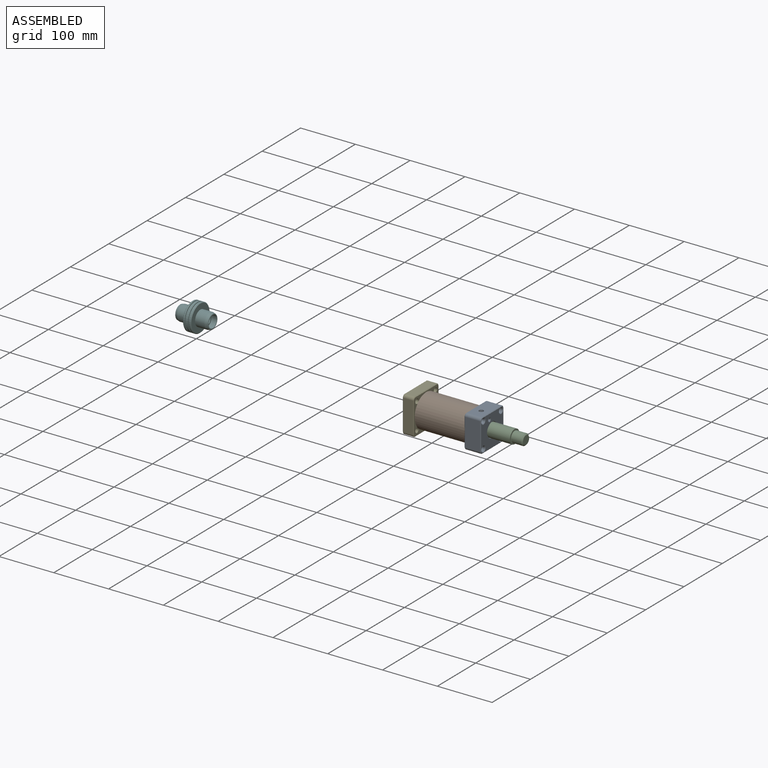
[diagram: assembled view]
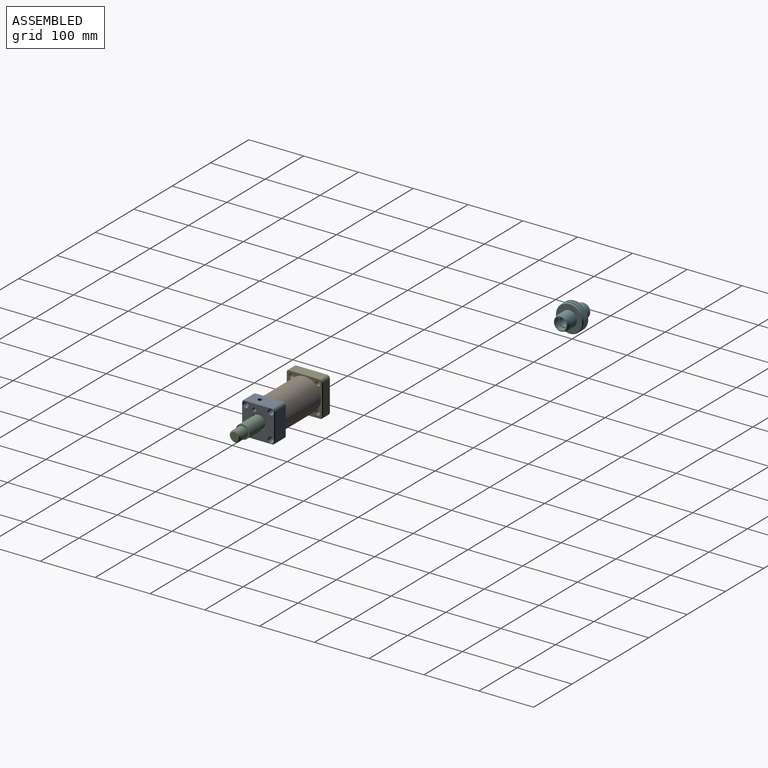
[diagram: assembled view, second angle]
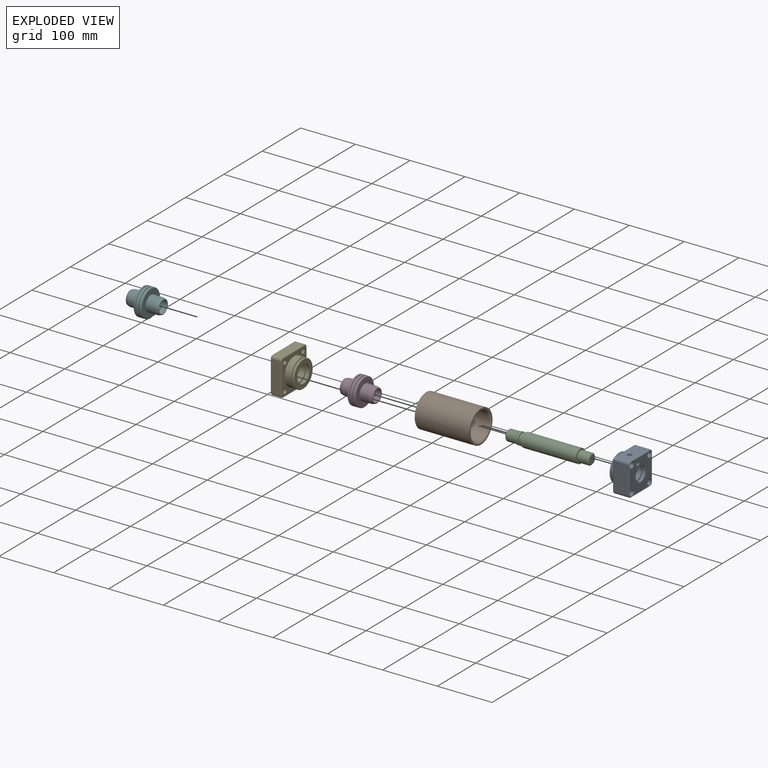
[diagram: exploded view]
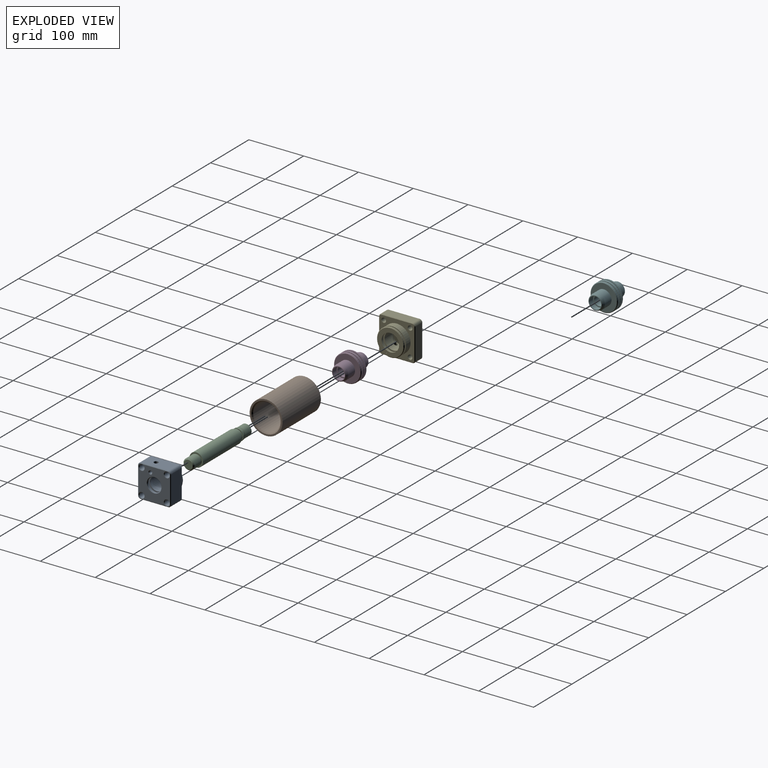
[diagram: exploded view, second angle]
ASSEMBLY  parts=6 mates=3
PART A: 63 faces, bbox 40x60x60 mm
  f0: cylinder r=12.5mm len=25mm, axis (1,0,0), area 235.6mm2, adj f8,f59
  f1: cylinder r=16mm len=32mm, axis (1,0,0), area 2457.2mm2, adj f4,f8,f30,f31
  f2: cylinder r=1mm len=21mm, axis (-1,0,0), area 131.9mm2, adj f27,f31
  f3: cylinder r=2.5mm len=10.88mm, axis (-1,0,0), area 163.8mm2, adj f31,f45
  f4: plane 36x36mm, normal (1,0,0), area 213.6mm2, adj f1,f5
  f5: cylinder r=18mm len=36mm, axis (1,0,0), area 226.2mm2, adj f4,f6
  f6: plane 36x36mm, normal (-1,0,0), area 213.6mm2, adj f5,f7
  f7: cylinder r=16mm len=32mm, axis (1,0,0), area 301.6mm2, adj f6,f27
  f8: plane 32x32mm, normal (1,0,0), area 313.4mm2, adj f0,f1
  f9: cylinder r=24.95mm len=49.9mm, axis (-1,0,0), area 627.1mm2, adj f24,f44
  f10: plane 58x58mm, normal (-1,0,0), area 2359.1mm2, adj f45,f46,f47,f48,f49,f50,f51,f52
  f11: plane 58x58mm, normal (1,0,0), area 854.6mm2, adj f32,f33,f34,f35,f36,f37,f38,f39
  f12: plane 50x28mm, normal (0,0,-1), area 1400mm2, adj f16,f19,f39,f53
  f13: plane 50x28mm, normal (0,1,0), area 1400mm2, adj f16,f17,f36,f50
  f14: plane 50x28mm, normal (0,0,1), area 1349.7mm2, adj f17,f18,f31,f40,f54
  f15: plane 50x28mm, normal (0,-1,0), area 1400mm2, adj f18,f19,f43,f57
  f16: cylinder r=5mm len=28mm, axis (-1,0,0), area 219.9mm2, adj f12,f13,f37,f51
  f17: cylinder r=5mm len=28mm, axis (1,0,0), area 219.9mm2, adj f13,f14,f38,f52
  f18: cylinder r=5mm len=28mm, axis (-1,0,0), area 219.9mm2, adj f14,f15,f42,f56
  f19: cylinder r=5mm len=28mm, axis (1,0,0), area 219.9mm2, adj f12,f15,f41,f55
  f20: cylinder r=4.5mm len=28mm, axis (1,0,0), area 791.7mm2, adj f35,f49
  f21: cylinder r=4.5mm len=28mm, axis (1,0,0), area 791.7mm2, adj f34,f48
  f22: cylinder r=4.5mm len=28mm, axis (1,0,0), area 791.7mm2, adj f32,f46
  f23: cylinder r=4.5mm len=28mm, axis (1,0,0), area 791.7mm2, adj f33,f47
  f24: plane 49.9x49.9mm, normal (1,0,0), area 146.1mm2, adj f9,f26
  f25: plane 49.9x49.9mm, normal (-1,0,0), area 146.1mm2, adj f26,f29
  f26: cylinder r=24mm len=48mm, axis (1,0,0), area 301.6mm2, adj f24,f25
  f27: plane 47.9x47.9mm, normal (1,0,0), area 994.6mm2, adj f2,f7,f28
  f28: cone r=23.95mm half-angle=45deg, axis (-1,0,0), area 217.3mm2, adj f27,f29
  f29: cylinder r=24.95mm len=49.9mm, axis (-1,0,0), area 313.5mm2, adj f25,f28
  f30: cone r=0mm half-angle=59deg, axis (0,0,1), area 0.7mm2, adj f1,f31
  f31: cylinder r=4mm len=18mm, axis (0,0,1), area 376.5mm2, adj f1,f2,f3,f14,f30
  f32: cone r=4.5mm half-angle=45deg, axis (1,0,0), area 44.4mm2, adj f11,f22
  f33: cone r=5.5mm half-angle=45deg, axis (1,0,0), area 44.4mm2, adj f11,f23
  f34: cone r=5.5mm half-angle=45deg, axis (1,0,0), area 44.4mm2, adj f11,f21
  f35: cone r=4.5mm half-angle=45deg, axis (1,0,0), area 44.4mm2, adj f11,f20
  f36: plane 50x1mm, normal (0.71,0.71,0), area 70.7mm2, adj f11,f13,f37,f38
  f37: cone r=4mm half-angle=45deg, axis (-1,0,0), area 10mm2, adj f11,f16,f36,f39
  f38: cone r=4mm half-angle=45deg, axis (-1,0,0), area 10mm2, adj f11,f17,f36,f40
  f39: plane 50x1mm, normal (0.71,0,-0.71), area 70.7mm2, adj f11,f12,f37,f41
  f40: plane 50x1mm, normal (0.71,0,0.71), area 70.7mm2, adj f11,f14,f38,f42
  f41: cone r=4mm half-angle=45deg, axis (-1,0,0), area 10mm2, adj f11,f19,f39,f43
  f42: cone r=4mm half-angle=45deg, axis (-1,0,0), area 10mm2, adj f11,f18,f40,f43
  f43: plane 50x1mm, normal (0.71,-0.71,0), area 70.7mm2, adj f11,f15,f41,f42
  f44: cone r=24.95mm half-angle=45deg, axis (-1,0,0), area 226.1mm2, adj f9,f11
  f45: cone r=2.5mm half-angle=45deg, axis (-1,0,0), area 26.7mm2, adj f3,f10
  f46: cone r=5.5mm half-angle=45deg, axis (-1,0,0), area 44.4mm2, adj f10,f22
  f47: cone r=4.5mm half-angle=45deg, axis (-1,0,0), area 44.4mm2, adj f10,f23
  f48: cone r=4.5mm half-angle=45deg, axis (-1,0,0), area 44.4mm2, adj f10,f21
  f49: cone r=5.5mm half-angle=45deg, axis (-1,0,0), area 44.4mm2, adj f10,f20
  f50: plane 50x1mm, normal (-0.71,0.71,0), area 70.7mm2, adj f10,f13,f51,f52
  f51: cone r=4mm half-angle=45deg, axis (1,0,0), area 10mm2, adj f10,f16,f50,f53
  f52: cone r=4mm half-angle=45deg, axis (1,0,0), area 10mm2, adj f10,f17,f50,f54
  f53: plane 50x1mm, normal (-0.71,0,-0.71), area 70.7mm2, adj f10,f12,f51,f55
  f54: plane 50x1mm, normal (-0.71,0,0.71), area 70.7mm2, adj f10,f14,f52,f56
  f55: cone r=4mm half-angle=45deg, axis (1,0,0), area 10mm2, adj f10,f19,f53,f57
  f56: cone r=4mm half-angle=45deg, axis (1,0,0), area 10mm2, adj f10,f18,f54,f57
  f57: plane 50x1mm, normal (-0.71,-0.71,0), area 70.7mm2, adj f10,f15,f55,f56
  f58: cylinder r=12.5mm len=25mm, axis (1,0,0), area 78.5mm2, adj f60,f62
  f59: plane 30x30mm, normal (-1,0,0), area 216mm2, adj f0,f61
  f60: plane 30x30mm, normal (1,0,0), area 216mm2, adj f58,f61
  f61: cylinder r=15mm len=30mm, axis (-1,0,0), area 471.2mm2, adj f59,f60
  f62: cone r=13.5mm half-angle=45deg, axis (-1,0,0), area 115.5mm2, adj f10,f58
PART B: 6 faces, bbox 100x60x60 mm
  f0: cylinder r=25mm len=96mm, axis (-1,0,0), area 15079.6mm2, adj f4,f5
  f1: cylinder r=30mm len=100mm, axis (-1,0,0), area 18849.6mm2, adj f2,f3
  f2: plane 60x60mm, normal (1,0,0), area 537.2mm2, adj f1,f4
  f3: plane 60x60mm, normal (-1,0,0), area 537.2mm2, adj f1,f5
  f4: cone r=25mm half-angle=45deg, axis (1,0,0), area 462.1mm2, adj f0,f2
  f5: cone r=27mm half-angle=45deg, axis (-1,0,0), area 462.1mm2, adj f0,f3
PART C: 18 faces, bbox 152.7x25x25 mm
  f0: plane 25x25mm, normal (-1,0,0), area 42.2mm2, adj f13,f16
  f1: cylinder r=10.95mm len=21.9mm, axis (-1,0,0), area 275.2mm2, adj f2,f16
  f2: plane 21.9x21.9mm, normal (-1,0,0), area 119.4mm2, adj f1,f3
  f3: cylinder r=9.05mm len=18.1mm, axis (-1,0,0), area 113.7mm2, adj f2,f4
  f4: plane 21.9x21.9mm, normal (1,0,0), area 119.4mm2, adj f3,f5
  f5: cylinder r=10.95mm len=21.9mm, axis (-1,0,0), area 275.2mm2, adj f4,f17
  f6: torus R=10mm, axis (-1,0,0), area 174.7mm2, adj f7,f17
  f7: cylinder r=10mm len=20mm, axis (-1,0,0), area 1011.6mm2, adj f6,f14
  f8: plane 16x16mm, normal (-1,0,0), area 201.1mm2, adj f14
  f9: plane 16x16mm, normal (1,0,0), area 201.1mm2, adj f15
  f10: cylinder r=10mm len=20mm, axis (-1,0,0), area 1082.2mm2, adj f11,f15
  f11: torus R=10mm, axis (-1,0,0), area 141mm2, adj f10,f12
  f12: plane 25x25mm, normal (1,0,0), area 176.7mm2, adj f11,f13
  f13: cylinder r=12.5mm len=100mm, axis (-1,0,0), area 7854mm2, adj f0,f12
  f14: cone r=8mm half-angle=45deg, axis (1,0,0), area 159.9mm2, adj f7,f8
  f15: cone r=10mm half-angle=45deg, axis (-1,0,0), area 159.9mm2, adj f9,f10
  f16: cone r=10.95mm half-angle=45deg, axis (1,0,0), area 101.7mm2, adj f0,f1
  f17: cone r=9.98mm half-angle=44.3deg, axis (1,0,0), area 91.8mm2, adj f5,f6
PART D: 26 faces, bbox 60x49.9x49.9 mm
  f0: plane 23.51x23.51mm, normal (-1,0,0), area 179.7mm2, adj f1,f11
  f1: cylinder r=9mm len=50mm, axis (-1,0,0), area 2827.4mm2, adj f0,f24
  f2: cylinder r=24.95mm len=49.9mm, axis (-1,0,0), area 705.4mm2, adj f3,f14
  f3: plane 49.9x49.9mm, normal (-1,0,0), area 228.1mm2, adj f2,f4
  f4: cylinder r=23.45mm len=46.9mm, axis (-1,0,0), area 221mm2, adj f3,f5
  f5: plane 49.9x49.9mm, normal (1,0,0), area 228.1mm2, adj f4,f6
  f6: cylinder r=24.95mm len=49.9mm, axis (-1,0,0), area 431.1mm2, adj f5,f12
  f7: plane 47.9x47.9mm, normal (-1,0,0), area 1186.3mm2, adj f8,f12
  f8: cylinder r=14mm len=28mm, axis (-1,0,0), area 1474.8mm2, adj f7,f10
  f9: cone r=12.5mm half-angle=16.7deg, axis (1,0,0), area 311.6mm2, adj f10,f11
  f10: torus R=9mm, axis (1,0,0), area 127.5mm2, adj f8,f9
  f11: torus R=11.76mm, axis (-1,0,0), area 99mm2, adj f0,f9
  f12: cone r=23.95mm half-angle=45deg, axis (1,0,0), area 217.3mm2, adj f6,f7
  f13: plane 23.51x23.51mm, normal (1,0,0), area 54mm2, adj f22,f25
  f14: plane 49.9x49.9mm, normal (1,0,0), area 228.1mm2, adj f2,f15
  f15: cylinder r=23.45mm len=46.9mm, axis (1,0,0), area 221mm2, adj f14,f16
  f16: plane 49.9x49.9mm, normal (-1,0,0), area 228.1mm2, adj f15,f17
  f17: cylinder r=24.95mm len=49.9mm, axis (1,0,0), area 431.1mm2, adj f16,f23
  f18: plane 47.9x47.9mm, normal (1,0,0), area 1186.3mm2, adj f19,f23
  f19: cylinder r=14mm len=28mm, axis (1,0,0), area 1474.8mm2, adj f18,f21
  f20: cone r=12.5mm half-angle=16.7deg, axis (-1,0,0), area 311.6mm2, adj f21,f22
  f21: torus R=9mm, axis (-1,0,0), area 127.5mm2, adj f19,f20
  f22: torus R=11.76mm, axis (1,0,0), area 99mm2, adj f13,f20
  f23: cone r=23.95mm half-angle=45deg, axis (-1,0,0), area 217.3mm2, adj f17,f18
  f24: plane 22x22mm, normal (1,0,0), area 125.7mm2, adj f1,f25
  f25: cylinder r=11mm len=22mm, axis (-1,0,0), area 691.2mm2, adj f13,f24
PART E: 52 faces, bbox 37x66.1x66.1 mm
  f0: cylinder r=16mm len=32mm, axis (1,0,0), area 2179.4mm2, adj f6,f7,f48
  f1: cylinder r=3mm len=12mm, axis (-1,0,0), area 190.2mm2, adj f18,f48,f49
  f2: cylinder r=3mm len=6mm, axis (-1,0,0), area 10.3mm2, adj f47,f48,f49
  f3: cylinder r=3mm len=6mm, axis (-1,0,0), area 10.3mm2, adj f47,f48,f49
  f4: plane 37x37mm, normal (-1,0,0), area 271mm2, adj f5,f8
  f5: cylinder r=18.5mm len=37mm, axis (1,0,0), area 581.2mm2, adj f4,f6
  f6: plane 37x37mm, normal (1,0,0), area 271mm2, adj f0,f5
  f7: plane 32x32mm, normal (1,0,0), area 804.2mm2, adj f0
  f8: cylinder r=16mm len=32mm, axis (1,0,0), area 301.6mm2, adj f4,f23
  f9: cylinder r=24.95mm len=49.9mm, axis (-1,0,0), area 1881.2mm2, adj f19,f20
  f10: plane 56.08x18mm, normal (0,-1,0), area 1009.5mm2, adj f26,f29,f30,f38
  f11: plane 56.08x18mm, normal (0,0,-1), area 959.2mm2, adj f26,f27,f33,f41,f51
  f12: plane 56.08x18mm, normal (0,1,0), area 1009.5mm2, adj f27,f28,f37,f45
  f13: cylinder r=4.25mm len=20mm, axis (1,0,0), area 534.1mm2, adj f18,f19
  f14: cylinder r=4.25mm len=20mm, axis (1,0,0), area 534.1mm2, adj f18,f19
  f15: cylinder r=4.25mm len=20mm, axis (1,0,0), area 534.1mm2, adj f18,f19
  f16: plane 56.08x18mm, normal (0,0,1), area 1009.5mm2, adj f28,f29,f34,f42
  f17: cylinder r=4.25mm len=20mm, axis (1,0,0), area 534.1mm2, adj f18,f19
  f18: plane 64.08x64.08mm, normal (-1,0,0), area 3837.7mm2, adj f1,f13,f14,f15,f17,f30,f31,f32
  f19: plane 64.08x64.08mm, normal (1,0,0), area 1910.3mm2, adj f9,f13,f14,f15,f17,f38,f39,f40
  f20: plane 49.9x49.9mm, normal (1,0,0), area 293.7mm2, adj f9,f22
  f21: plane 49.9x49.9mm, normal (-1,0,0), area 293.7mm2, adj f22,f25
  f22: cylinder r=23mm len=46mm, axis (1,0,0), area 289mm2, adj f20,f21
  f23: plane 47.9x47.9mm, normal (1,0,0), area 994.6mm2, adj f8,f24,f46
  f24: cone r=23.95mm half-angle=45deg, axis (-1,0,0), area 217.3mm2, adj f23,f25
  f25: cylinder r=24.95mm len=49.9mm, axis (-1,0,0), area 313.5mm2, adj f21,f24
  f26: cylinder r=5mm len=18mm, axis (-1,0,0), area 141.4mm2, adj f10,f11,f31,f39
  f27: cylinder r=5mm len=18mm, axis (1,0,0), area 141.4mm2, adj f11,f12,f35,f43
  f28: cylinder r=5mm len=18mm, axis (-1,0,0), area 141.4mm2, adj f12,f16,f36,f44
  f29: cylinder r=5mm len=18mm, axis (1,0,0), area 141.4mm2, adj f10,f16,f32,f40
  f30: plane 56.08x1mm, normal (-0.71,-0.71,0), area 79.3mm2, adj f10,f18,f31,f32
  f31: cone r=4mm half-angle=45deg, axis (1,0,0), area 10mm2, adj f18,f26,f30,f33
  f32: cone r=4mm half-angle=45deg, axis (1,0,0), area 10mm2, adj f18,f29,f30,f34
  f33: plane 56.08x1mm, normal (-0.71,0,-0.71), area 79.3mm2, adj f11,f18,f31,f35
  f34: plane 56.08x1mm, normal (-0.71,0,0.71), area 79.3mm2, adj f16,f18,f32,f36
  f35: cone r=4mm half-angle=45deg, axis (1,0,0), area 10mm2, adj f18,f27,f33,f37
  f36: cone r=4mm half-angle=45deg, axis (1,0,0), area 10mm2, adj f18,f28,f34,f37
  f37: plane 56.08x1mm, normal (-0.71,0.71,0), area 79.3mm2, adj f12,f18,f35,f36
  f38: plane 56.08x1mm, normal (0.71,-0.71,0), area 79.3mm2, adj f10,f19,f39,f40
  f39: cone r=4mm half-angle=45deg, axis (-1,0,0), area 10mm2, adj f19,f26,f38,f41
  f40: cone r=4mm half-angle=45deg, axis (-1,0,0), area 10mm2, adj f19,f29,f38,f42
  f41: plane 56.08x1mm, normal (0.71,0,-0.71), area 79.3mm2, adj f11,f19,f39,f43
  f42: plane 56.08x1mm, normal (0.71,0,0.71), area 79.3mm2, adj f16,f19,f40,f44
  f43: cone r=4mm half-angle=45deg, axis (-1,0,0), area 10mm2, adj f19,f27,f41,f45
  f44: cone r=4mm half-angle=45deg, axis (-1,0,0), area 10mm2, adj f19,f28,f42,f45
  f45: plane 56.08x1mm, normal (0.71,0.71,0), area 79.3mm2, adj f12,f19,f43,f44
  f46: cylinder r=1mm len=22mm, axis (-1,0,0), area 138.2mm2, adj f23,f47
  f47: plane 6x6mm, normal (-1,0,0), area 25.1mm2, adj f2,f3,f46
  f48: cylinder r=3mm len=6.86mm, axis (0,0,1), area 56.8mm2, adj f0,f1,f2,f3
  f49: cylinder r=3mm len=6mm, axis (0,0,1), area 67.9mm2, adj f1,f2,f3,f50
  f50: cone r=4mm half-angle=52deg, axis (0,0,-1), area 27.9mm2, adj f49,f51
  f51: cylinder r=4mm len=8.04mm, axis (0,0,1), area 202.1mm2, adj f11,f50
PART F: same geometry as D
PLACE A rot(axis=(0,0,-1),180deg) t=(401.45,-130.61,32.36)mm
PLACE B t=(310.95,-130.61,32.36)mm
PLACE C t=(422.49,-130.61,32.21)mm
PLACE D t=(342.19,-130.61,32.36)mm
PLACE E t=(310.95,-130.61,32.36)mm
PLACE F t=(-200,0,0)mm
MATE slider D.f1 <-> B.f1  axis (-1,0,0) through (342.19,-130.61,32.36)mm
MATE fastened A.f1 <-> B.f0  axis (-1,0,0) through (408.95,-130.61,32.36)mm
MATE fastened B.f1 <-> E.f9  axis (-1,0,0) through (310.95,-130.61,32.36)mm
